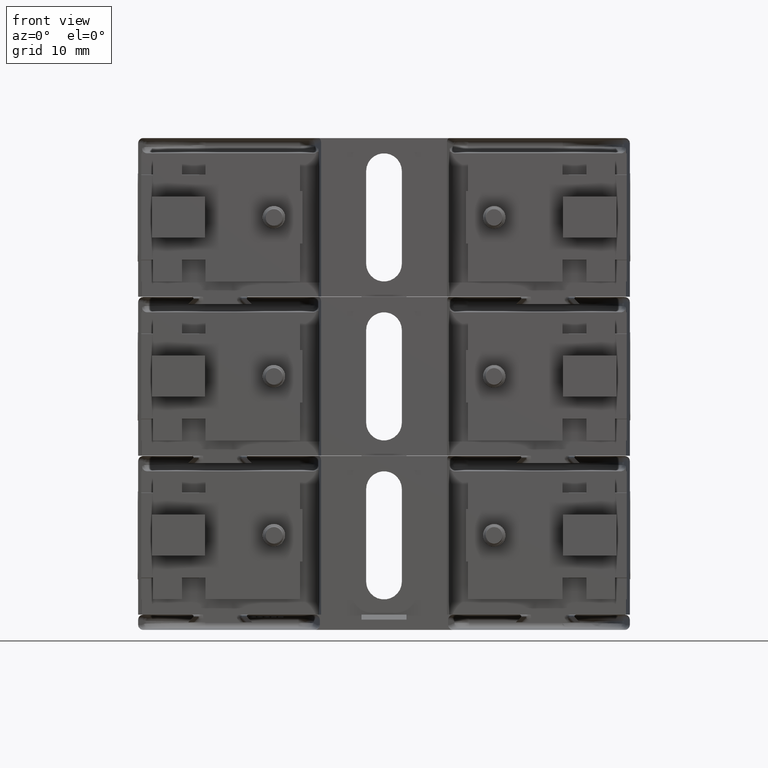
[diagram: clean part render]
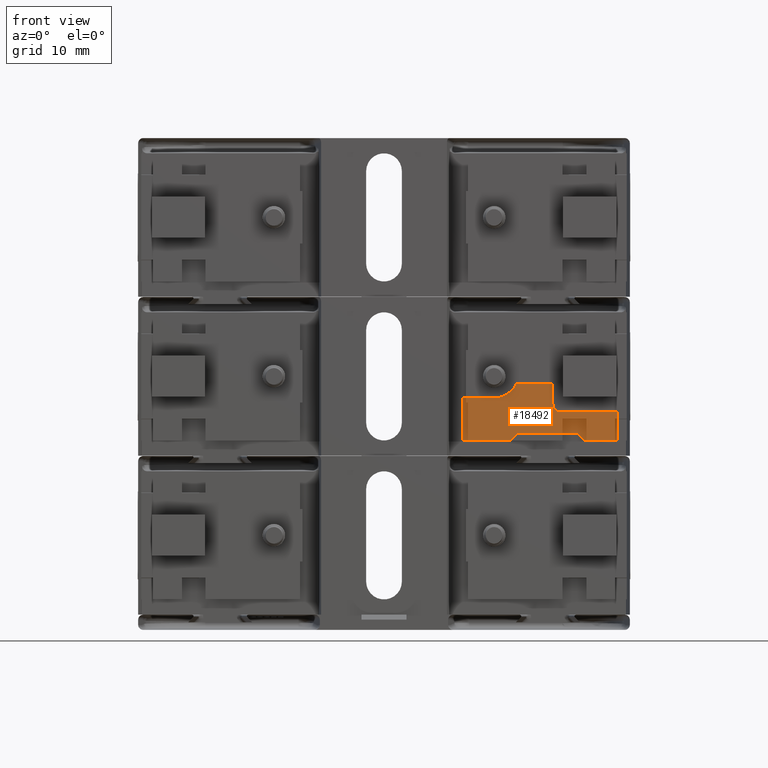
[diagram: same view with one face highlighted and labeled with its STEP entity id]
A machine part, front view. The second image highlights one B-rep face of the part: STEP entity #18492.
In plain terms, the highlighted planar face has unit normal (0, 1, 0).
Its self-contained STEP definition (entity closure, byte-faithful):
#590 = ORIENTED_EDGE ( 'NONE', *, *, #15144, .T. ) ;
#2512 = DIRECTION ( 'NONE',  ( -0.0000000000000000000, -1.000000000000000000, -0.0000000000000000000 ) ) ;
#2762 = LINE ( 'NONE', #84013, #78480 ) ;
#6181 = CARTESIAN_POINT ( 'NONE',  ( 1.422999999999999800, 0.4199999999999999800, 0.1414999999999997100 ) ) ;
#11218 = DIRECTION ( 'NONE',  ( -0.0000000000000000000, -0.0000000000000000000, -1.000000000000000000 ) ) ;
#14772 = LINE ( 'NONE', #70364, #116691 ) ;
#15144 = EDGE_CURVE ( 'NONE', #111506, #75206, #54772, .T. ) ;
#16486 = CARTESIAN_POINT ( 'NONE',  ( 0.6720000000000009300, 0.4199999999999999800, 0.4014999999999998000 ) ) ;
#18492 = ADVANCED_FACE ( 'NONE', ( #46253 ), #49200, .T. ) ;
#19270 = EDGE_CURVE ( 'NONE', #115672, #83894, #14772, .T. ) ;
#21793 = ORIENTED_EDGE ( 'NONE', *, *, #104682, .T. ) ;
#22626 = CARTESIAN_POINT ( 'NONE',  ( 1.422999999999999800, 0.4199999999999999800, 0.1414999999999997100 ) ) ;
#22870 = LINE ( 'NONE', #34478, #46051 ) ;
#24407 = VERTEX_POINT ( 'NONE', #90604 ) ;
#25714 = LINE ( 'NONE', #85878, #124545 ) ;
#27183 = ORIENTED_EDGE ( 'NONE', *, *, #78550, .F. ) ;
#27448 = DIRECTION ( 'NONE',  ( 1.597571926119451900E-015, -0.0000000000000000000, 1.000000000000000000 ) ) ;
#28015 = EDGE_CURVE ( 'NONE', #111506, #115672, #75371, .T. ) ;
#28512 = VERTEX_POINT ( 'NONE', #6181 ) ;
#29623 = DIRECTION ( 'NONE',  ( 1.000000000000000000, -0.0000000000000000000, -4.645999989224921200E-016 ) ) ;
#30291 = CARTESIAN_POINT ( 'NONE',  ( 1.422999999999999800, 0.4199999999999999800, 0.3144999999999994500 ) ) ;
#32631 = VERTEX_POINT ( 'NONE', #49757 ) ;
#33384 = DIRECTION ( 'NONE',  ( 0.0000000000000000000, -1.000000000000000000, 0.0000000000000000000 ) ) ;
#34116 = ORIENTED_EDGE ( 'NONE', *, *, #98144, .F. ) ;
#34478 = CARTESIAN_POINT ( 'NONE',  ( 0.7750000000000014700, 0.4199999999999999800, 0.1414999999999997100 ) ) ;
#36710 = LINE ( 'NONE', #22626, #86056 ) ;
#36999 = CIRCLE ( 'NONE', #66680, 0.05000000000000001000 ) ;
#38350 = CARTESIAN_POINT ( 'NONE',  ( 0.4810000000000004300, 0.4199999999999999800, 0.4014999999999998000 ) ) ;
#39730 = CARTESIAN_POINT ( 'NONE',  ( 0.6720000000000009300, 0.4199999999999999800, 0.5524999999999997700 ) ) ;
#40408 = AXIS2_PLACEMENT_3D ( 'NONE', #39730, #108718, #49622 ) ;
#41838 = CARTESIAN_POINT ( 'NONE',  ( 1.422999999999999800, 0.4199999999999999800, 0.3144999999999994500 ) ) ;
#42207 = CARTESIAN_POINT ( 'NONE',  ( 1.080000000000000300, 0.4199999999999999800, 0.3144999999999996100 ) ) ;
#42300 = VERTEX_POINT ( 'NONE', #69898 ) ;
#44476 = DIRECTION ( 'NONE',  ( 0.7071067811865474600, -0.0000000000000000000, 0.7071067811865474600 ) ) ;
#44496 = DIRECTION ( 'NONE',  ( -1.000000000000000000, -0.0000000000000000000, 0.0000000000000000000 ) ) ;
#44899 = CARTESIAN_POINT ( 'NONE',  ( 0.6720000000000009300, 0.4199999999999999800, 0.4014999999999998000 ) ) ;
#45147 = ORIENTED_EDGE ( 'NONE', *, *, #102551, .F. ) ;
#45784 = CARTESIAN_POINT ( 'NONE',  ( 0.8190000000000013900, 0.4199999999999999800, 0.1854999999999996900 ) ) ;
#46051 = VECTOR ( 'NONE', #44476, 39.37007874015748900 ) ;
#46203 = LINE ( 'NONE', #70694, #66306 ) ;
#46253 = FACE_OUTER_BOUND ( 'NONE', #123251, .T. ) ;
#49200 = PLANE ( 'NONE',  #40408 ) ;
#49622 = DIRECTION ( 'NONE',  ( 0.0000000000000000000, -0.0000000000000000000, 1.000000000000000000 ) ) ;
#49757 = CARTESIAN_POINT ( 'NONE',  ( 1.030000000000000200, 0.4199999999999999800, 0.3644999999999997100 ) ) ;
#49966 = DIRECTION ( 'NONE',  ( -1.000000000000000000, -0.0000000000000000000, 6.134072547560075300E-016 ) ) ;
#53236 = LINE ( 'NONE', #109050, #105712 ) ;
#54772 = CIRCLE ( 'NONE', #67236, 0.1510000000000000500 ) ;
#56577 = DIRECTION ( 'NONE',  ( 1.000000000000000000, -0.0000000000000000000, 0.0000000000000000000 ) ) ;
#59121 = VECTOR ( 'NONE', #27448, 39.37007874015748100 ) ;
#59924 = VERTEX_POINT ( 'NONE', #61569 ) ;
#61569 = CARTESIAN_POINT ( 'NONE',  ( 1.181000000000001400, 0.4199999999999999800, 0.1854999999999996900 ) ) ;
#61771 = CARTESIAN_POINT ( 'NONE',  ( 0.6720000000000009300, 0.4199999999999999800, 0.5524999999999997700 ) ) ;
#62049 = VERTEX_POINT ( 'NONE', #45784 ) ;
#63032 = ORIENTED_EDGE ( 'NONE', *, *, #107753, .F. ) ;
#64570 = VERTEX_POINT ( 'NONE', #41838 ) ;
#65160 = ORIENTED_EDGE ( 'NONE', *, *, #117682, .F. ) ;
#66306 = VECTOR ( 'NONE', #80618, 39.37007874015748100 ) ;
#66680 = AXIS2_PLACEMENT_3D ( 'NONE', #92492, #33384, #102411 ) ;
#67236 = AXIS2_PLACEMENT_3D ( 'NONE', #61771, #2512, #71594 ) ;
#67540 = ORIENTED_EDGE ( 'NONE', *, *, #69674, .F. ) ;
#69114 = EDGE_CURVE ( 'NONE', #28512, #64570, #36710, .T. ) ;
#69674 = EDGE_CURVE ( 'NONE', #127489, #28512, #46203, .T. ) ;
#69898 = CARTESIAN_POINT ( 'NONE',  ( 0.7750000000000014700, 0.4199999999999999800, 0.1414999999999997100 ) ) ;
#70364 = CARTESIAN_POINT ( 'NONE',  ( 0.4810000000000004300, 0.4199999999999999800, 0.4014999999999998000 ) ) ;
#70694 = CARTESIAN_POINT ( 'NONE',  ( 1.225000000000001200, 0.4199999999999999800, 0.1414999999999995700 ) ) ;
#71594 = DIRECTION ( 'NONE',  ( 0.0000000000000000000, 0.0000000000000000000, -1.000000000000000000 ) ) ;
#72277 = VECTOR ( 'NONE', #44496, 39.37007874015748100 ) ;
#73455 = LINE ( 'NONE', #78816, #99646 ) ;
#75206 = VERTEX_POINT ( 'NONE', #91363 ) ;
#75371 = LINE ( 'NONE', #44899, #72277 ) ;
#78480 = VECTOR ( 'NONE', #93924, 39.37007874015748100 ) ;
#78550 = EDGE_CURVE ( 'NONE', #42300, #62049, #22870, .T. ) ;
#78816 = CARTESIAN_POINT ( 'NONE',  ( 0.4810000000000004300, 0.4199999999999999800, 0.1414999999999998500 ) ) ;
#80618 = DIRECTION ( 'NONE',  ( 1.000000000000000000, -0.0000000000000000000, 6.898606044606772200E-016 ) ) ;
#83654 = ORIENTED_EDGE ( 'NONE', *, *, #19270, .F. ) ;
#83894 = VERTEX_POINT ( 'NONE', #89172 ) ;
#84013 = CARTESIAN_POINT ( 'NONE',  ( 1.181000000000001400, 0.4199999999999999800, 0.1854999999999996900 ) ) ;
#85372 = LINE ( 'NONE', #125839, #59121 ) ;
#85878 = CARTESIAN_POINT ( 'NONE',  ( 0.8190000000000013900, 0.4199999999999999800, 0.1854999999999996900 ) ) ;
#86056 = VECTOR ( 'NONE', #101558, 39.37007874015748100 ) ;
#86807 = EDGE_CURVE ( 'NONE', #64570, #93927, #114104, .T. ) ;
#86809 = ORIENTED_EDGE ( 'NONE', *, *, #102166, .F. ) ;
#87832 = VECTOR ( 'NONE', #89803, 39.37007874015748100 ) ;
#89172 = CARTESIAN_POINT ( 'NONE',  ( 0.4810000000000004300, 0.4199999999999999800, 0.1414999999999998500 ) ) ;
#89803 = DIRECTION ( 'NONE',  ( -1.000000000000000000, -0.0000000000000000000, 3.475633579725529300E-016 ) ) ;
#90604 = CARTESIAN_POINT ( 'NONE',  ( 1.030000000000000200, 0.4199999999999999800, 0.4854999999999997100 ) ) ;
#91363 = CARTESIAN_POINT ( 'NONE',  ( 0.8073218385922992200, 0.4199999999999999800, 0.4854999999999997700 ) ) ;
#92492 = CARTESIAN_POINT ( 'NONE',  ( 1.080000000000000300, 0.4199999999999999800, 0.3644999999999996000 ) ) ;
#93924 = DIRECTION ( 'NONE',  ( 0.7071067811865454600, -0.0000000000000000000, -0.7071067811865496800 ) ) ;
#93927 = VERTEX_POINT ( 'NONE', #42207 ) ;
#98144 = EDGE_CURVE ( 'NONE', #62049, #59924, #25714, .T. ) ;
#99646 = VECTOR ( 'NONE', #29623, 39.37007874015748100 ) ;
#101558 = DIRECTION ( 'NONE',  ( -0.0000000000000000000, -0.0000000000000000000, 1.000000000000000000 ) ) ;
#101948 = CARTESIAN_POINT ( 'NONE',  ( 1.225000000000001200, 0.4199999999999999800, 0.1414999999999995700 ) ) ;
#102166 = EDGE_CURVE ( 'NONE', #24407, #75206, #53236, .T. ) ;
#102411 = DIRECTION ( 'NONE',  ( 0.0000000000000000000, 0.0000000000000000000, -1.000000000000000000 ) ) ;
#102551 = EDGE_CURVE ( 'NONE', #32631, #24407, #85372, .T. ) ;
#103851 = ORIENTED_EDGE ( 'NONE', *, *, #86807, .F. ) ;
#104198 = ORIENTED_EDGE ( 'NONE', *, *, #69114, .F. ) ;
#104682 = EDGE_CURVE ( 'NONE', #32631, #93927, #36999, .T. ) ;
#104943 = ORIENTED_EDGE ( 'NONE', *, *, #28015, .F. ) ;
#105712 = VECTOR ( 'NONE', #49966, 39.37007874015748100 ) ;
#107753 = EDGE_CURVE ( 'NONE', #83894, #42300, #73455, .T. ) ;
#108718 = DIRECTION ( 'NONE',  ( -0.0000000000000000000, 1.000000000000000000, 0.0000000000000000000 ) ) ;
#109050 = CARTESIAN_POINT ( 'NONE',  ( 1.030000000000000500, 0.4199999999999999800, 0.4854999999999996500 ) ) ;
#111506 = VERTEX_POINT ( 'NONE', #16486 ) ;
#114104 = LINE ( 'NONE', #30291, #87832 ) ;
#115672 = VERTEX_POINT ( 'NONE', #38350 ) ;
#116691 = VECTOR ( 'NONE', #11218, 39.37007874015748100 ) ;
#117682 = EDGE_CURVE ( 'NONE', #59924, #127489, #2762, .T. ) ;
#123251 = EDGE_LOOP ( 'NONE', ( #83654, #104943, #590, #86809, #45147, #21793, #103851, #104198, #67540, #65160, #34116, #27183, #63032 ) ) ;
#124545 = VECTOR ( 'NONE', #56577, 39.37007874015748100 ) ;
#125839 = CARTESIAN_POINT ( 'NONE',  ( 1.030000000000000200, 0.4199999999999999800, 0.3144999999999996100 ) ) ;
#127489 = VERTEX_POINT ( 'NONE', #101948 ) ;